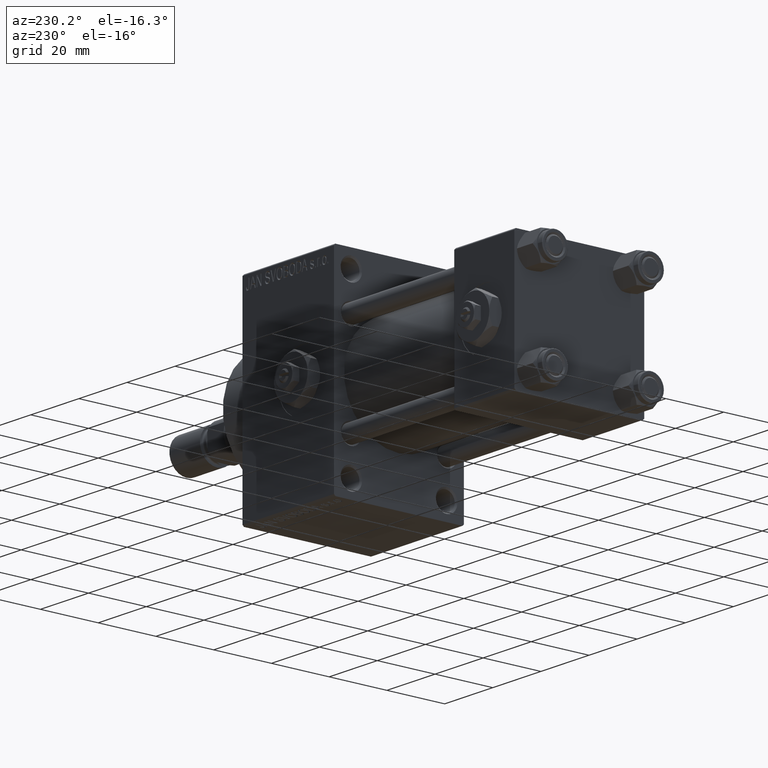
[diagram: clean part render]
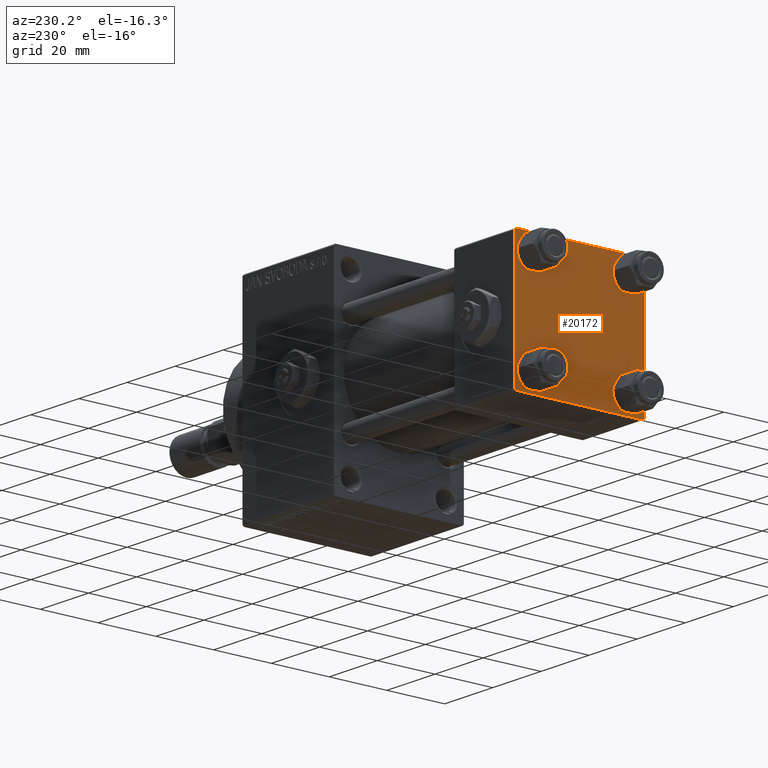
[diagram: same view with one face highlighted and labeled with its STEP entity id]
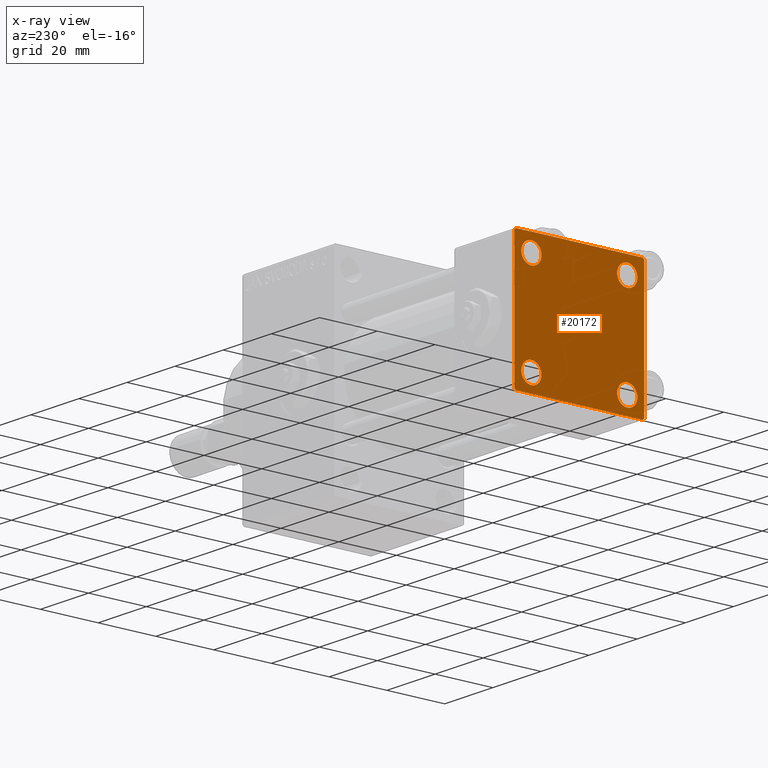
[diagram: x-ray of the same camera — body ghosted, the highlighted face saturated]
A machine part, auxiliary view. The second image highlights one B-rep face of the part: STEP entity #20172.
The next image is the same camera in x-ray: the body ghosted, the highlighted face saturated — about 0% of this face is hidden behind the body in this view.
In plain terms, the highlighted planar face has unit normal (-1, 0, 0).
Its self-contained STEP definition (entity closure, byte-faithful):
#825 = AXIS2_PLACEMENT_3D ( 'NONE', #15337, #15092, #38606 ) ;
#974 = CARTESIAN_POINT ( 'NONE',  ( 0.000000000000000000, -22.50000000000000000, 22.50000000000000000 ) ) ;
#1219 = LINE ( 'NONE', #974, #29920 ) ;
#1755 = LINE ( 'NONE', #5776, #46367 ) ;
#2259 = DIRECTION ( 'NONE',  ( 1.000000000000000000, -0.000000000000000000, 0.000000000000000000 ) ) ;
#2940 = ORIENTED_EDGE ( 'NONE', *, *, #9584, .T. ) ;
#3003 = AXIS2_PLACEMENT_3D ( 'NONE', #44985, #48521, #29433 ) ;
#3437 = CARTESIAN_POINT ( 'NONE',  ( 0.000000000000000000, 16.59999999999999787, -13.10000000000000675 ) ) ;
#3629 = FACE_OUTER_BOUND ( 'NONE', #7304, .T. ) ;
#3896 = DIRECTION ( 'NONE',  ( 1.000000000000000000, -0.000000000000000000, 0.000000000000000000 ) ) ;
#4372 = VECTOR ( 'NONE', #22262, 1000.000000000000000 ) ;
#4445 = EDGE_CURVE ( 'NONE', #33239, #17924, #43399, .T. ) ;
#4600 = VERTEX_POINT ( 'NONE', #24292 ) ;
#4795 = DIRECTION ( 'NONE',  ( 0.000000000000000000, 0.7071067811865474617, -0.7071067811865474617 ) ) ;
#5416 = DIRECTION ( 'NONE',  ( -0.000000000000000000, -0.7071067811865426878, -0.7071067811865524577 ) ) ;
#5556 = DIRECTION ( 'NONE',  ( 0.000000000000000000, -1.000000000000000000, -7.709882115452476934E-17 ) ) ;
#5657 = ORIENTED_EDGE ( 'NONE', *, *, #38435, .T. ) ;
#5776 = CARTESIAN_POINT ( 'NONE',  ( 0.000000000000000000, 22.24999999999999645, 22.24999999999999645 ) ) ;
#5951 = EDGE_LOOP ( 'NONE', ( #14047, #40293 ) ) ;
#6825 = DIRECTION ( 'NONE',  ( 1.000000000000000000, -0.000000000000000000, 0.000000000000000000 ) ) ;
#7248 = VERTEX_POINT ( 'NONE', #43725 ) ;
#7304 = EDGE_LOOP ( 'NONE', ( #17766, #5657, #33320, #2940, #20741, #23976, #11768, #20132 ) ) ;
#7525 = CARTESIAN_POINT ( 'NONE',  ( 0.000000000000000000, -21.99999999999997158, -22.50000000000000711 ) ) ;
#7666 = DIRECTION ( 'NONE',  ( 0.000000000000000000, 0.000000000000000000, 1.000000000000000000 ) ) ;
#8822 = CARTESIAN_POINT ( 'NONE',  ( 0.000000000000000000, 16.59999999999999787, 13.10000000000000675 ) ) ;
#8971 = CIRCLE ( 'NONE', #16970, 3.499999999999996003 ) ;
#9254 = DIRECTION ( 'NONE',  ( -0.000000000000000000, 0.7071067811865525687, 0.7071067811865425767 ) ) ;
#9413 = EDGE_CURVE ( 'NONE', #7248, #18581, #15587, .T. ) ;
#9530 = EDGE_CURVE ( 'NONE', #11727, #10985, #10249, .T. ) ;
#9584 = EDGE_CURVE ( 'NONE', #40091, #4600, #41049, .T. ) ;
#10249 = LINE ( 'NONE', #34272, #43571 ) ;
#10340 = CARTESIAN_POINT ( 'NONE',  ( 0.000000000000000000, 16.59999999999999787, -16.60000000000000497 ) ) ;
#10525 = CARTESIAN_POINT ( 'NONE',  ( 0.000000000000000000, 16.59999999999999787, 16.60000000000000497 ) ) ;
#10985 = VERTEX_POINT ( 'NONE', #38268 ) ;
#11219 = ORIENTED_EDGE ( 'NONE', *, *, #47179, .T. ) ;
#11718 = VECTOR ( 'NONE', #9254, 999.9999999999998863 ) ;
#11727 = VERTEX_POINT ( 'NONE', #33515 ) ;
#11768 = ORIENTED_EDGE ( 'NONE', *, *, #31865, .F. ) ;
#12964 = VERTEX_POINT ( 'NONE', #46640 ) ;
#13105 = DIRECTION ( 'NONE',  ( 0.000000000000000000, 0.000000000000000000, 1.000000000000000000 ) ) ;
#13354 = DIRECTION ( 'NONE',  ( 0.000000000000000000, 0.000000000000000000, 1.000000000000000000 ) ) ;
#13826 = CARTESIAN_POINT ( 'NONE',  ( 0.000000000000000000, 22.50000000000000000, 22.50000000000000355 ) ) ;
#14047 = ORIENTED_EDGE ( 'NONE', *, *, #4445, .T. ) ;
#15092 = DIRECTION ( 'NONE',  ( 1.000000000000000000, -0.000000000000000000, 0.000000000000000000 ) ) ;
#15337 = CARTESIAN_POINT ( 'NONE',  ( 0.000000000000000000, 16.59999999999999787, -16.60000000000000497 ) ) ;
#15587 = CIRCLE ( 'NONE', #47595, 3.499999999999996003 ) ;
#15816 = CARTESIAN_POINT ( 'NONE',  ( 0.000000000000000000, -16.59999999999999076, 16.60000000000000853 ) ) ;
#16084 = CARTESIAN_POINT ( 'NONE',  ( 0.000000000000000000, 16.59999999999999787, -20.10000000000000142 ) ) ;
#16970 = AXIS2_PLACEMENT_3D ( 'NONE', #10340, #6825, #37388 ) ;
#17116 = CARTESIAN_POINT ( 'NONE',  ( 0.000000000000000000, 16.59999999999999787, 16.60000000000000497 ) ) ;
#17766 = ORIENTED_EDGE ( 'NONE', *, *, #9530, .T. ) ;
#17924 = VERTEX_POINT ( 'NONE', #36593 ) ;
#18335 = DIRECTION ( 'NONE',  ( 1.000000000000000000, -0.000000000000000000, 0.000000000000000000 ) ) ;
#18581 = VERTEX_POINT ( 'NONE', #21239 ) ;
#18928 = PLANE ( 'NONE',  #3003 ) ;
#19016 = CARTESIAN_POINT ( 'NONE',  ( 0.000000000000000000, -16.59999999999999076, 16.60000000000000853 ) ) ;
#19024 = VERTEX_POINT ( 'NONE', #36706 ) ;
#19266 = DIRECTION ( 'NONE',  ( 0.000000000000000000, -1.000000000000000000, -2.312964634635742957E-16 ) ) ;
#19511 = VERTEX_POINT ( 'NONE', #3437 ) ;
#20132 = ORIENTED_EDGE ( 'NONE', *, *, #42983, .T. ) ;
#20172 = ADVANCED_FACE ( 'NONE', ( #29676, #37959, #49023, #33698, #3629 ), #18928, .T. ) ;
#20266 = ORIENTED_EDGE ( 'NONE', *, *, #43149, .T. ) ;
#20741 = ORIENTED_EDGE ( 'NONE', *, *, #26029, .F. ) ;
#20943 = CARTESIAN_POINT ( 'NONE',  ( 0.000000000000000000, 22.25000000000014566, -22.24999999999984013 ) ) ;
#21239 = CARTESIAN_POINT ( 'NONE',  ( 0.000000000000000000, -16.59999999999999076, 13.10000000000001030 ) ) ;
#21271 = CARTESIAN_POINT ( 'NONE',  ( 0.000000000000000000, -22.50000000000000000, 22.00000000000000000 ) ) ;
#21793 = AXIS2_PLACEMENT_3D ( 'NONE', #29336, #18335, #13354 ) ;
#22262 = DIRECTION ( 'NONE',  ( 0.000000000000000000, -0.7071067811865426878, 0.7071067811865524577 ) ) ;
#22520 = DIRECTION ( 'NONE',  ( 1.000000000000000000, -0.000000000000000000, 0.000000000000000000 ) ) ;
#23039 = EDGE_LOOP ( 'NONE', ( #38860, #11219 ) ) ;
#23423 = CARTESIAN_POINT ( 'NONE',  ( 0.000000000000000000, -16.59999999999999076, -16.60000000000000853 ) ) ;
#23976 = ORIENTED_EDGE ( 'NONE', *, *, #29585, .T. ) ;
#24017 = DIRECTION ( 'NONE',  ( 0.000000000000000000, 0.000000000000000000, -1.000000000000000000 ) ) ;
#24042 = DIRECTION ( 'NONE',  ( 1.000000000000000000, -0.000000000000000000, 0.000000000000000000 ) ) ;
#24259 = VERTEX_POINT ( 'NONE', #43261 ) ;
#24292 = CARTESIAN_POINT ( 'NONE',  ( 0.000000000000000000, -22.50000000000000000, -21.99999999999997158 ) ) ;
#25416 = AXIS2_PLACEMENT_3D ( 'NONE', #17116, #35647, #13105 ) ;
#25444 = ORIENTED_EDGE ( 'NONE', *, *, #36843, .T. ) ;
#25504 = EDGE_LOOP ( 'NONE', ( #36501, #46556 ) ) ;
#26029 = EDGE_CURVE ( 'NONE', #40398, #4600, #1219, .T. ) ;
#26261 = CARTESIAN_POINT ( 'NONE',  ( 0.000000000000000000, -22.25000000000014566, -22.24999999999984013 ) ) ;
#29336 = CARTESIAN_POINT ( 'NONE',  ( 0.000000000000000000, -16.59999999999999076, -16.60000000000000853 ) ) ;
#29433 = DIRECTION ( 'NONE',  ( -0.000000000000000000, 0.000000000000000000, 1.000000000000000000 ) ) ;
#29585 = EDGE_CURVE ( 'NONE', #40398, #19024, #32043, .T. ) ;
#29676 = FACE_BOUND ( 'NONE', #23039, .T. ) ;
#29920 = VECTOR ( 'NONE', #24017, 1000.000000000000000 ) ;
#30515 = CARTESIAN_POINT ( 'NONE',  ( 0.000000000000000000, -16.59999999999999076, -13.10000000000001030 ) ) ;
#30765 = CARTESIAN_POINT ( 'NONE',  ( 0.000000000000000000, 22.50000000000000000, -22.49999999999999645 ) ) ;
#31561 = DIRECTION ( 'NONE',  ( 0.000000000000000000, 0.000000000000000000, 1.000000000000000000 ) ) ;
#31656 = VECTOR ( 'NONE', #5556, 1000.000000000000000 ) ;
#31865 = EDGE_CURVE ( 'NONE', #32265, #19024, #44636, .T. ) ;
#32002 = CIRCLE ( 'NONE', #825, 3.499999999999996003 ) ;
#32043 = LINE ( 'NONE', #43570, #11718 ) ;
#32265 = VERTEX_POINT ( 'NONE', #49041 ) ;
#32646 = CIRCLE ( 'NONE', #25416, 3.499999999999996003 ) ;
#32819 = DIRECTION ( 'NONE',  ( 0.000000000000000000, 0.000000000000000000, 1.000000000000000000 ) ) ;
#33239 = VERTEX_POINT ( 'NONE', #30515 ) ;
#33320 = ORIENTED_EDGE ( 'NONE', *, *, #37484, .T. ) ;
#33428 = VECTOR ( 'NONE', #19266, 1000.000000000000000 ) ;
#33515 = CARTESIAN_POINT ( 'NONE',  ( 0.000000000000000000, 22.50000000000000000, 21.99999999999999645 ) ) ;
#33698 = FACE_BOUND ( 'NONE', #36516, .T. ) ;
#34272 = CARTESIAN_POINT ( 'NONE',  ( 0.000000000000000000, 22.50000000000000000, 22.50000000000000355 ) ) ;
#35548 = EDGE_CURVE ( 'NONE', #17924, #33239, #43782, .T. ) ;
#35647 = DIRECTION ( 'NONE',  ( 1.000000000000000000, -0.000000000000000000, 0.000000000000000000 ) ) ;
#36501 = ORIENTED_EDGE ( 'NONE', *, *, #48991, .T. ) ;
#36516 = EDGE_LOOP ( 'NONE', ( #25444, #20266 ) ) ;
#36593 = CARTESIAN_POINT ( 'NONE',  ( 0.000000000000000000, -16.59999999999999076, -20.10000000000000497 ) ) ;
#36706 = CARTESIAN_POINT ( 'NONE',  ( 0.000000000000000000, -21.99999999999997868, 22.50000000000000000 ) ) ;
#36843 = EDGE_CURVE ( 'NONE', #24259, #38995, #32646, .T. ) ;
#37388 = DIRECTION ( 'NONE',  ( 0.000000000000000000, 0.000000000000000000, 1.000000000000000000 ) ) ;
#37484 = EDGE_CURVE ( 'NONE', #12964, #40091, #42310, .T. ) ;
#37686 = AXIS2_PLACEMENT_3D ( 'NONE', #19016, #22520, #37804 ) ;
#37804 = DIRECTION ( 'NONE',  ( 0.000000000000000000, 0.000000000000000000, 1.000000000000000000 ) ) ;
#37959 = FACE_BOUND ( 'NONE', #5951, .T. ) ;
#38268 = CARTESIAN_POINT ( 'NONE',  ( 0.000000000000000000, 22.50000000000000000, -21.99999999999996803 ) ) ;
#38435 = EDGE_CURVE ( 'NONE', #10985, #12964, #43755, .T. ) ;
#38473 = CIRCLE ( 'NONE', #37686, 3.499999999999996003 ) ;
#38606 = DIRECTION ( 'NONE',  ( 0.000000000000000000, 0.000000000000000000, 1.000000000000000000 ) ) ;
#38860 = ORIENTED_EDGE ( 'NONE', *, *, #9413, .T. ) ;
#38995 = VERTEX_POINT ( 'NONE', #8822 ) ;
#40091 = VERTEX_POINT ( 'NONE', #7525 ) ;
#40293 = ORIENTED_EDGE ( 'NONE', *, *, #35548, .T. ) ;
#40398 = VERTEX_POINT ( 'NONE', #21271 ) ;
#40659 = VECTOR ( 'NONE', #5416, 1000.000000000000000 ) ;
#41049 = LINE ( 'NONE', #26261, #4372 ) ;
#41558 = AXIS2_PLACEMENT_3D ( 'NONE', #10525, #2259, #32819 ) ;
#42233 = EDGE_CURVE ( 'NONE', #45910, #19511, #32002, .T. ) ;
#42310 = LINE ( 'NONE', #30765, #33428 ) ;
#42983 = EDGE_CURVE ( 'NONE', #32265, #11727, #1755, .T. ) ;
#43149 = EDGE_CURVE ( 'NONE', #38995, #24259, #43951, .T. ) ;
#43261 = CARTESIAN_POINT ( 'NONE',  ( 0.000000000000000000, 16.59999999999999787, 20.10000000000000142 ) ) ;
#43399 = CIRCLE ( 'NONE', #21793, 3.499999999999996003 ) ;
#43570 = CARTESIAN_POINT ( 'NONE',  ( -0.000000000000000000, -22.24999999999984013, 22.25000000000015277 ) ) ;
#43571 = VECTOR ( 'NONE', #45574, 1000.000000000000000 ) ;
#43725 = CARTESIAN_POINT ( 'NONE',  ( 0.000000000000000000, -16.59999999999999076, 20.10000000000000853 ) ) ;
#43755 = LINE ( 'NONE', #20943, #40659 ) ;
#43782 = CIRCLE ( 'NONE', #44605, 3.499999999999996003 ) ;
#43951 = CIRCLE ( 'NONE', #41558, 3.499999999999996003 ) ;
#44605 = AXIS2_PLACEMENT_3D ( 'NONE', #23423, #3896, #7666 ) ;
#44636 = LINE ( 'NONE', #13826, #31656 ) ;
#44985 = CARTESIAN_POINT ( 'NONE',  ( 0.000000000000000000, 0.000000000000000000, 0.000000000000000000 ) ) ;
#45574 = DIRECTION ( 'NONE',  ( 0.000000000000000000, 0.000000000000000000, -1.000000000000000000 ) ) ;
#45910 = VERTEX_POINT ( 'NONE', #16084 ) ;
#46367 = VECTOR ( 'NONE', #4795, 1000.000000000000114 ) ;
#46556 = ORIENTED_EDGE ( 'NONE', *, *, #42233, .T. ) ;
#46640 = CARTESIAN_POINT ( 'NONE',  ( 0.000000000000000000, 21.99999999999999289, -22.49999999999999645 ) ) ;
#47179 = EDGE_CURVE ( 'NONE', #18581, #7248, #38473, .T. ) ;
#47595 = AXIS2_PLACEMENT_3D ( 'NONE', #15816, #24042, #31561 ) ;
#48521 = DIRECTION ( 'NONE',  ( -1.000000000000000000, 0.000000000000000000, -0.000000000000000000 ) ) ;
#48991 = EDGE_CURVE ( 'NONE', #19511, #45910, #8971, .T. ) ;
#49023 = FACE_BOUND ( 'NONE', #25504, .T. ) ;
#49041 = CARTESIAN_POINT ( 'NONE',  ( 0.000000000000000000, 21.99999999999999289, 22.50000000000000355 ) ) ;